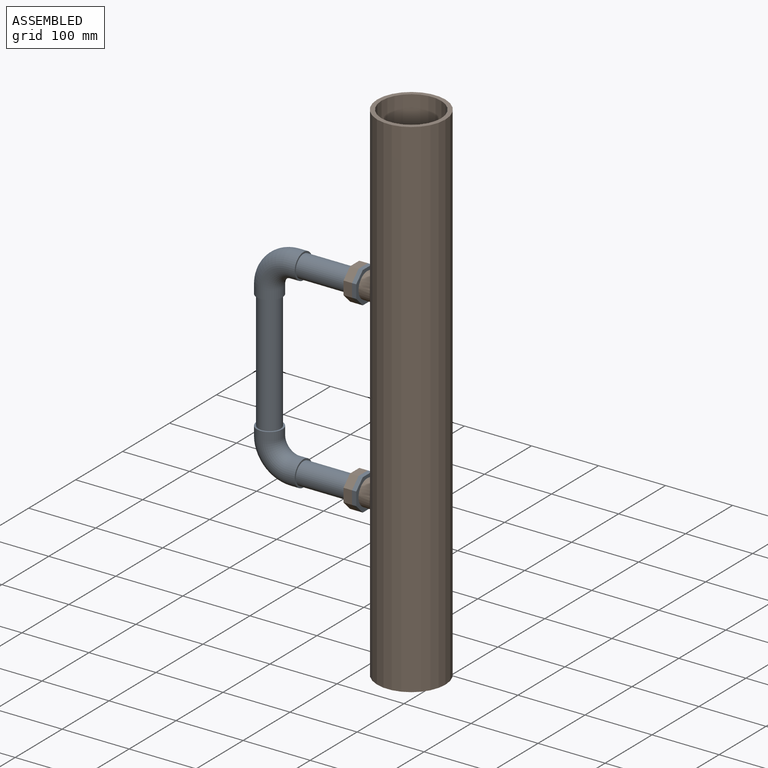
[diagram: assembled view]
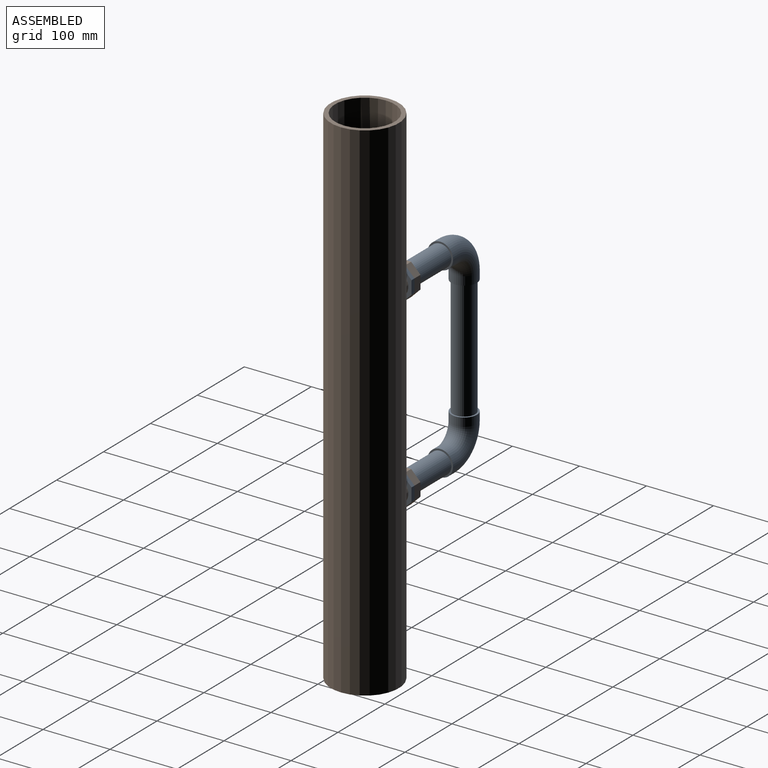
[diagram: assembled view, second angle]
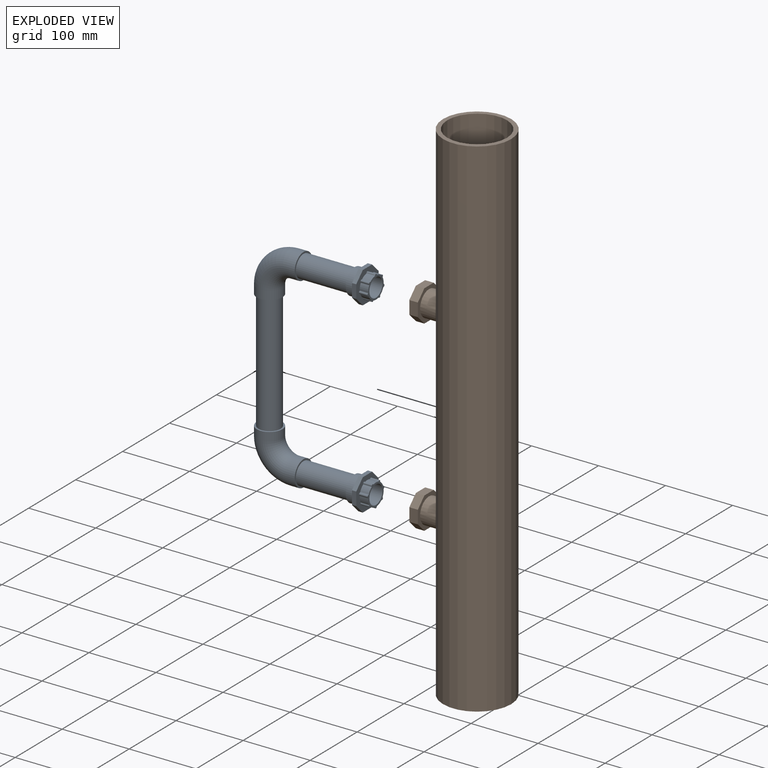
[diagram: exploded view]
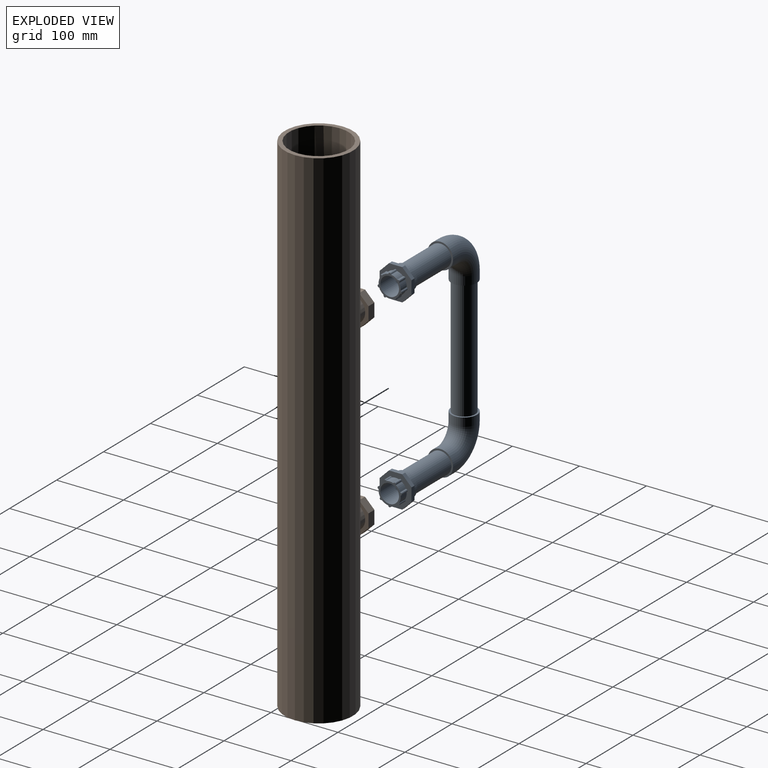
[diagram: exploded view, second angle]
ASSEMBLY  parts=2 mates=2
PART A: 104 faces, bbox 182.5x47.6x327 mm
  f0: cylinder r=16.51mm len=12.7mm, axis (-1,0,0), area 123.8mm2, adj f6,f30,f50,f51
  f1: cylinder r=16.51mm len=12.7mm, axis (-1,0,0), area 123.8mm2, adj f6,f30,f39,f52
  f2: cylinder r=16.51mm len=12.7mm, axis (-1,0,0), area 123.8mm2, adj f6,f30,f40,f41
  f3: cylinder r=16.51mm len=12.7mm, axis (-1,0,0), area 123.8mm2, adj f6,f30,f42,f43
  f4: cylinder r=16.51mm len=12.7mm, axis (-1,0,0), area 123.8mm2, adj f6,f30,f44,f45
  f5: cylinder r=16.51mm len=12.7mm, axis (-1,0,0), area 123.8mm2, adj f6,f30,f46,f47
  f6: plane 47.63x47.63mm, normal (1,0,0), area 980.8mm2, adj f0,f1,f2,f3,f4,f5,f20,f21
  f7: plane 47.63x47.63mm, normal (-1,0,0), area 738.9mm2, adj f20,f21,f22,f23,f24,f25,f26,f27
  f8: cylinder r=19.05mm len=38.1mm, axis (0,0,-1), area 1520.1mm2, adj f9,f12
  f9: torus R=38.1mm, axis (0,-1,0), area 7163.4mm2, adj f8,f11
  f10: torus R=38.1mm, axis (0,-1,0), area 6208.3mm2, adj f16,f19
  f11: cylinder r=19.05mm len=38.1mm, axis (1,0,0), area 1520.1mm2, adj f9,f13
  f12: plane 38.1x38.1mm, normal (0,0,-1), area 283.8mm2, adj f8,f17
  f13: plane 38.1x38.1mm, normal (1,0,0), area 283.8mm2, adj f11,f15
  f14: cylinder r=13.97mm len=120.65mm, axis (1,0,0), area 10590.2mm2, adj f16,f30
  f15: cylinder r=16.51mm len=76.2mm, axis (1,0,0), area 7904.6mm2, adj f13,f28
  f16: plane 33.02x33.02mm, normal (-1,0,0), area 243.2mm2, adj f10,f14
  f17: cylinder r=16.51mm len=177.8mm, axis (0,0,-1), area 18444.2mm2, adj f12,f65
  f18: cylinder r=13.97mm len=203.2mm, axis (0,0,-1), area 17836.1mm2, adj f19,f70
  f19: plane 33.02x33.02mm, normal (0,0,1), area 243.2mm2, adj f10,f18
  f20: plane 13.95x13.95mm, normal (0,0.71,0.71), area 125.3mm2, adj f6,f7,f21,f27
  f21: plane 19.73x6.35mm, normal (0,0,1), area 125.3mm2, adj f6,f7,f20,f22
  f22: plane 13.95x13.95mm, normal (0,-0.71,0.71), area 125.3mm2, adj f6,f7,f21,f23
  f23: plane 19.73x6.35mm, normal (0,-1,0), area 125.3mm2, adj f6,f7,f22,f24
  f24: plane 13.95x13.95mm, normal (0,-0.71,-0.71), area 125.3mm2, adj f6,f7,f23,f25
  f25: plane 19.73x6.35mm, normal (0,0,-1), area 125.3mm2, adj f6,f7,f24,f26
  f26: plane 13.95x13.95mm, normal (0,0.71,-0.71), area 125.3mm2, adj f6,f7,f25,f27
  f27: plane 19.73x6.35mm, normal (0,1,0), area 125.3mm2, adj f6,f7,f20,f26
  f28: plane 38.1x38.1mm, normal (-1,0,0), area 283.8mm2, adj f15,f29
  f29: cylinder r=19.05mm len=38.1mm, axis (1,0,0), area 1520.1mm2, adj f7,f28
  f30: plane 36x35.2mm, normal (1,0,0), area 285.1mm2, adj f0,f1,f2,f3,f4,f5,f14,f31
  f31: cylinder r=16.51mm len=12.7mm, axis (-1,0,0), area 123.8mm2, adj f6,f30,f48,f49
  f32: cylinder r=1.91mm len=12.7mm, axis (1,0,0), area 65.1mm2, adj f6,f30,f49,f50
  f33: cylinder r=1.91mm len=12.7mm, axis (1,0,0), area 65.1mm2, adj f6,f30,f47,f48
  f34: cylinder r=1.91mm len=12.7mm, axis (1,0,0), area 65.1mm2, adj f6,f30,f45,f46
  f35: cylinder r=1.91mm len=12.7mm, axis (1,0,0), area 65.1mm2, adj f6,f30,f43,f44
  f36: cylinder r=1.91mm len=12.7mm, axis (1,0,0), area 65.1mm2, adj f6,f30,f41,f42
  f37: cylinder r=1.91mm len=12.7mm, axis (1,0,0), area 65.1mm2, adj f6,f30,f39,f40
  f38: cylinder r=1.91mm len=12.7mm, axis (1,0,0), area 65.1mm2, adj f6,f30,f51,f52
  f39: cylinder r=0.81mm len=12.7mm, axis (-1,0,0), area 12.3mm2, adj f1,f6,f30,f37
  f40: cylinder r=0.81mm len=12.7mm, axis (1,0,0), area 12.3mm2, adj f2,f6,f30,f37
  f41: cylinder r=0.81mm len=12.7mm, axis (-1,0,0), area 12.3mm2, adj f2,f6,f30,f36
  f42: cylinder r=0.81mm len=12.7mm, axis (1,0,0), area 12.3mm2, adj f3,f6,f30,f36
  f43: cylinder r=0.81mm len=12.7mm, axis (-1,0,0), area 12.3mm2, adj f3,f6,f30,f35
  f44: cylinder r=0.81mm len=12.7mm, axis (1,0,0), area 12.3mm2, adj f4,f6,f30,f35
  f45: cylinder r=0.81mm len=12.7mm, axis (-1,0,0), area 12.3mm2, adj f4,f6,f30,f34
  f46: cylinder r=0.81mm len=12.7mm, axis (1,0,0), area 12.3mm2, adj f5,f6,f30,f34
  f47: cylinder r=0.81mm len=12.7mm, axis (-1,0,0), area 12.3mm2, adj f5,f6,f30,f33
  f48: cylinder r=0.81mm len=12.7mm, axis (1,0,0), area 12.3mm2, adj f6,f30,f31,f33
  f49: cylinder r=0.81mm len=12.7mm, axis (-1,0,0), area 12.3mm2, adj f6,f30,f31,f32
  f50: cylinder r=0.81mm len=12.7mm, axis (1,0,0), area 12.3mm2, adj f0,f6,f30,f32
  f51: cylinder r=0.81mm len=12.7mm, axis (-1,0,0), area 12.3mm2, adj f0,f6,f30,f38
  f52: cylinder r=0.81mm len=12.7mm, axis (1,0,0), area 12.3mm2, adj f1,f6,f30,f38
  f53: cylinder r=16.51mm len=12.7mm, axis (-1,0,0), area 123.8mm2, adj f59,f81,f101,f102
  f54: cylinder r=16.51mm len=12.7mm, axis (-1,0,0), area 123.8mm2, adj f59,f81,f90,f103
  f55: cylinder r=16.51mm len=12.7mm, axis (-1,0,0), area 123.8mm2, adj f59,f81,f91,f92
  f56: cylinder r=16.51mm len=12.7mm, axis (-1,0,0), area 123.8mm2, adj f59,f81,f93,f94
  f57: cylinder r=16.51mm len=12.7mm, axis (-1,0,0), area 123.8mm2, adj f59,f81,f95,f96
  f58: cylinder r=16.51mm len=12.7mm, axis (-1,0,0), area 123.8mm2, adj f59,f81,f97,f98
  f59: plane 47.63x47.63mm, normal (1,0,0), area 980.8mm2, adj f53,f54,f55,f56,f57,f58,f71,f72
  f60: plane 47.63x47.63mm, normal (-1,0,0), area 738.9mm2, adj f71,f72,f73,f74,f75,f76,f77,f78
  f61: cylinder r=19.05mm len=38.1mm, axis (0,0,1), area 1520.1mm2, adj f62,f65
  f62: torus R=38.1mm, axis (0,-1,0), area 7163.4mm2, adj f61,f64
  f63: torus R=38.1mm, axis (0,-1,0), area 6208.3mm2, adj f69,f70
  f64: cylinder r=19.05mm len=38.1mm, axis (1,0,0), area 1520.1mm2, adj f62,f66
  f65: plane 38.1x38.1mm, normal (0,0,1), area 283.8mm2, adj f17,f61
  f66: plane 38.1x38.1mm, normal (1,0,0), area 283.8mm2, adj f64,f68
  f67: cylinder r=13.97mm len=120.65mm, axis (1,0,0), area 10590.2mm2, adj f69,f81
  f68: cylinder r=16.51mm len=76.2mm, axis (1,0,0), area 7904.6mm2, adj f66,f79
  f69: plane 33.02x33.02mm, normal (-1,0,0), area 243.2mm2, adj f63,f67
  f70: plane 33.02x33.02mm, normal (0,0,-1), area 243.2mm2, adj f18,f63
  f71: plane 13.95x13.95mm, normal (0,0.71,-0.71), area 125.3mm2, adj f59,f60,f72,f78
  f72: plane 19.73x6.35mm, normal (0,0,-1), area 125.3mm2, adj f59,f60,f71,f73
  f73: plane 13.95x13.95mm, normal (0,-0.71,-0.71), area 125.3mm2, adj f59,f60,f72,f74
  f74: plane 19.73x6.35mm, normal (0,-1,0), area 125.3mm2, adj f59,f60,f73,f75
  f75: plane 13.95x13.95mm, normal (0,-0.71,0.71), area 125.3mm2, adj f59,f60,f74,f76
  f76: plane 19.73x6.35mm, normal (0,0,1), area 125.3mm2, adj f59,f60,f75,f77
  f77: plane 13.95x13.95mm, normal (0,0.71,0.71), area 125.3mm2, adj f59,f60,f76,f78
  f78: plane 19.73x6.35mm, normal (0,1,0), area 125.3mm2, adj f59,f60,f71,f77
  f79: plane 38.1x38.1mm, normal (-1,0,0), area 283.8mm2, adj f68,f80
  f80: cylinder r=19.05mm len=38.1mm, axis (1,0,0), area 1520.1mm2, adj f60,f79
  f81: plane 36x35.2mm, normal (1,0,0), area 285.1mm2, adj f53,f54,f55,f56,f57,f58,f67,f82
  f82: cylinder r=16.51mm len=12.7mm, axis (-1,0,0), area 123.8mm2, adj f59,f81,f99,f100
  f83: cylinder r=1.91mm len=12.7mm, axis (1,0,0), area 65.1mm2, adj f59,f81,f100,f101
  f84: cylinder r=1.91mm len=12.7mm, axis (1,0,0), area 65.1mm2, adj f59,f81,f98,f99
  f85: cylinder r=1.91mm len=12.7mm, axis (1,0,0), area 65.1mm2, adj f59,f81,f96,f97
  f86: cylinder r=1.91mm len=12.7mm, axis (1,0,0), area 65.1mm2, adj f59,f81,f94,f95
  f87: cylinder r=1.91mm len=12.7mm, axis (1,0,0), area 65.1mm2, adj f59,f81,f92,f93
  f88: cylinder r=1.91mm len=12.7mm, axis (1,0,0), area 65.1mm2, adj f59,f81,f90,f91
  f89: cylinder r=1.91mm len=12.7mm, axis (1,0,0), area 65.1mm2, adj f59,f81,f102,f103
  f90: cylinder r=0.81mm len=12.7mm, axis (-1,0,0), area 12.3mm2, adj f54,f59,f81,f88
  f91: cylinder r=0.81mm len=12.7mm, axis (1,0,0), area 12.3mm2, adj f55,f59,f81,f88
  f92: cylinder r=0.81mm len=12.7mm, axis (-1,0,0), area 12.3mm2, adj f55,f59,f81,f87
  f93: cylinder r=0.81mm len=12.7mm, axis (1,0,0), area 12.3mm2, adj f56,f59,f81,f87
  f94: cylinder r=0.81mm len=12.7mm, axis (-1,0,0), area 12.3mm2, adj f56,f59,f81,f86
  f95: cylinder r=0.81mm len=12.7mm, axis (1,0,0), area 12.3mm2, adj f57,f59,f81,f86
  f96: cylinder r=0.81mm len=12.7mm, axis (-1,0,0), area 12.3mm2, adj f57,f59,f81,f85
  f97: cylinder r=0.81mm len=12.7mm, axis (1,0,0), area 12.3mm2, adj f58,f59,f81,f85
  f98: cylinder r=0.81mm len=12.7mm, axis (-1,0,0), area 12.3mm2, adj f58,f59,f81,f84
  f99: cylinder r=0.81mm len=12.7mm, axis (1,0,0), area 12.3mm2, adj f59,f81,f82,f84
  f100: cylinder r=0.81mm len=12.7mm, axis (-1,0,0), area 12.3mm2, adj f59,f81,f82,f83
  f101: cylinder r=0.81mm len=12.7mm, axis (1,0,0), area 12.3mm2, adj f53,f59,f81,f83
  f102: cylinder r=0.81mm len=12.7mm, axis (-1,0,0), area 12.3mm2, adj f53,f59,f81,f89
  f103: cylinder r=0.81mm len=12.7mm, axis (1,0,0), area 12.3mm2, adj f54,f59,f81,f89
PART B: 32 faces, bbox 135.3x101.6x762 mm
  f0: cylinder r=44.45mm len=762mm, axis (0,0,1), area 211076.1mm2, adj f2,f3,f16,f27
  f1: cylinder r=50.8mm len=762mm, axis (0,0,1), area 240229.8mm2, adj f2,f3,f30,f31
  f2: plane 101.6x101.6mm, normal (0,0,-1), area 1900.2mm2, adj f0,f1
  f3: plane 101.6x101.6mm, normal (0,0,1), area 1900.2mm2, adj f0,f1
  f4: cylinder r=19.05mm len=38.1mm, axis (-1,0,0), area 2416.6mm2, adj f6,f30
  f5: cylinder r=19.05mm len=38.1mm, axis (-1,0,0), area 2416.6mm2, adj f17,f31
  f6: plane 47.63x47.63mm, normal (1,0,0), area 738.9mm2, adj f4,f8,f9,f10,f11,f12,f13,f14
  f7: plane 47.63x47.63mm, normal (-1,0,0), area 885.8mm2, adj f8,f9,f10,f11,f12,f13,f14,f15
  f8: plane 19.73x12.7mm, normal (0,1,0), area 250.5mm2, adj f6,f7,f9,f15
  f9: plane 13.95x13.95mm, normal (0,0.71,-0.71), area 250.5mm2, adj f6,f7,f8,f10
  f10: plane 19.73x12.7mm, normal (0,0,-1), area 250.5mm2, adj f6,f7,f9,f11
  f11: plane 13.95x13.95mm, normal (0,-0.71,-0.71), area 250.5mm2, adj f6,f7,f10,f12
  f12: plane 19.73x12.7mm, normal (0,-1,0), area 250.5mm2, adj f6,f7,f11,f13
  f13: plane 13.95x13.95mm, normal (0,-0.71,0.71), area 250.5mm2, adj f6,f7,f12,f14
  f14: plane 19.73x12.7mm, normal (0,0,1), area 250.5mm2, adj f6,f7,f13,f15
  f15: plane 13.95x13.95mm, normal (0,0.71,0.71), area 250.5mm2, adj f6,f7,f8,f14
  f16: cylinder r=16.51mm len=41.96mm, axis (-1,0,0), area 4186.5mm2, adj f0,f28
  f17: plane 47.63x47.63mm, normal (1,0,0), area 738.9mm2, adj f5,f19,f20,f21,f22,f23,f24,f25
  f18: plane 47.63x47.63mm, normal (-1,0,0), area 885.8mm2, adj f19,f20,f21,f22,f23,f24,f25,f26
  f19: plane 19.73x12.7mm, normal (0,0,-1), area 250.5mm2, adj f17,f18,f20,f26
  f20: plane 13.95x13.95mm, normal (0,-0.71,-0.71), area 250.5mm2, adj f17,f18,f19,f21
  f21: plane 19.73x12.7mm, normal (0,-1,0), area 250.5mm2, adj f17,f18,f20,f22
  f22: plane 13.95x13.95mm, normal (0,-0.71,0.71), area 250.5mm2, adj f17,f18,f21,f23
  f23: plane 19.73x12.7mm, normal (0,0,1), area 250.5mm2, adj f17,f18,f22,f24
  f24: plane 13.95x13.95mm, normal (0,0.71,0.71), area 250.5mm2, adj f17,f18,f23,f25
  f25: plane 19.73x12.7mm, normal (0,1,0), area 250.5mm2, adj f17,f18,f24,f26
  f26: plane 13.95x13.95mm, normal (0,0.71,-0.71), area 250.5mm2, adj f17,f18,f19,f25
  f27: cylinder r=16.51mm len=41.96mm, axis (-1,0,0), area 4186.5mm2, adj f0,f29
  f28: cone r=16.51mm half-angle=45deg, axis (-1,0,0), area 193.5mm2, adj f7,f16
  f29: cone r=16.51mm half-angle=45deg, axis (-1,0,0), area 193.5mm2, adj f18,f27
  f30: bspline ~44.47x41.85mm, area 547mm2, adj f1,f4
  f31: bspline ~44.47x41.85mm, area 547mm2, adj f1,f5
PLACE A t=(-37.14,52.22,68.92)mm
PLACE B t=(-43.49,52.22,68.92)mm
MATE planar A.f11 <-> B.f4  axis (-1,0,0) through (102.56,52.22,68.92)mm
MATE cylindrical A.f0 <-> B.f4  axis (-1,0,0) through (108.91,52.22,68.92)mm
